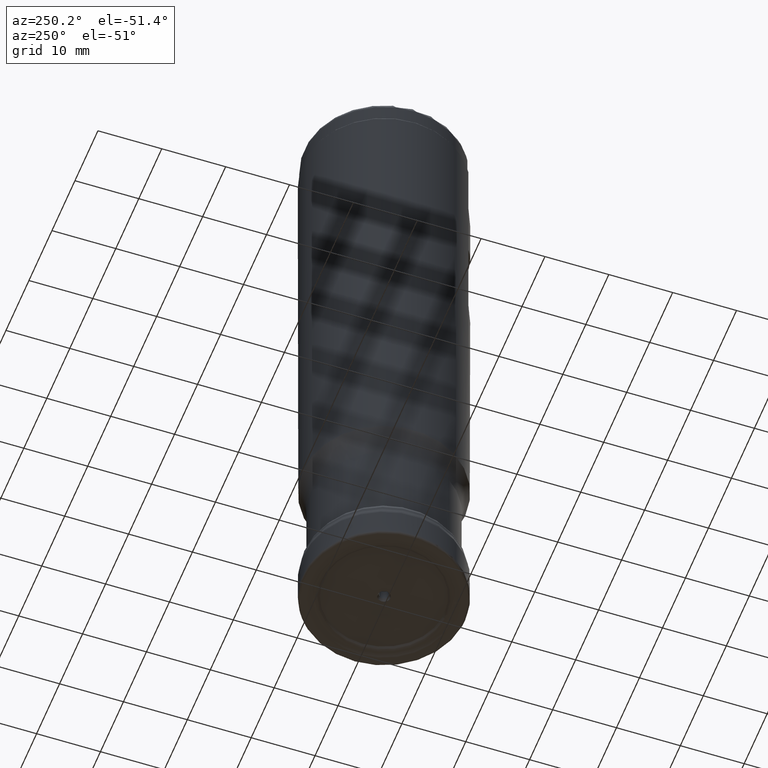
[diagram: clean part render]
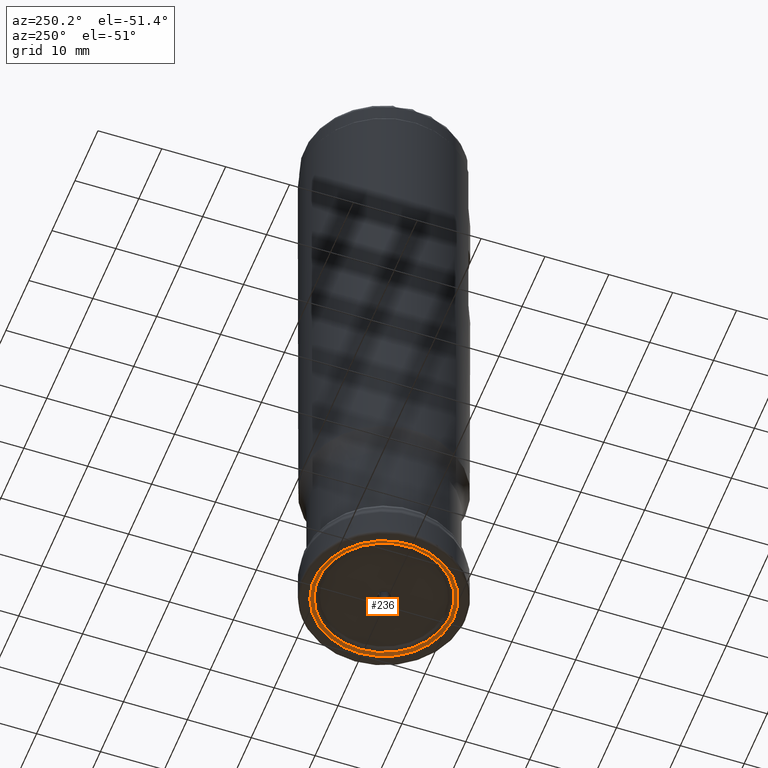
[diagram: same view with one face highlighted and labeled with its STEP entity id]
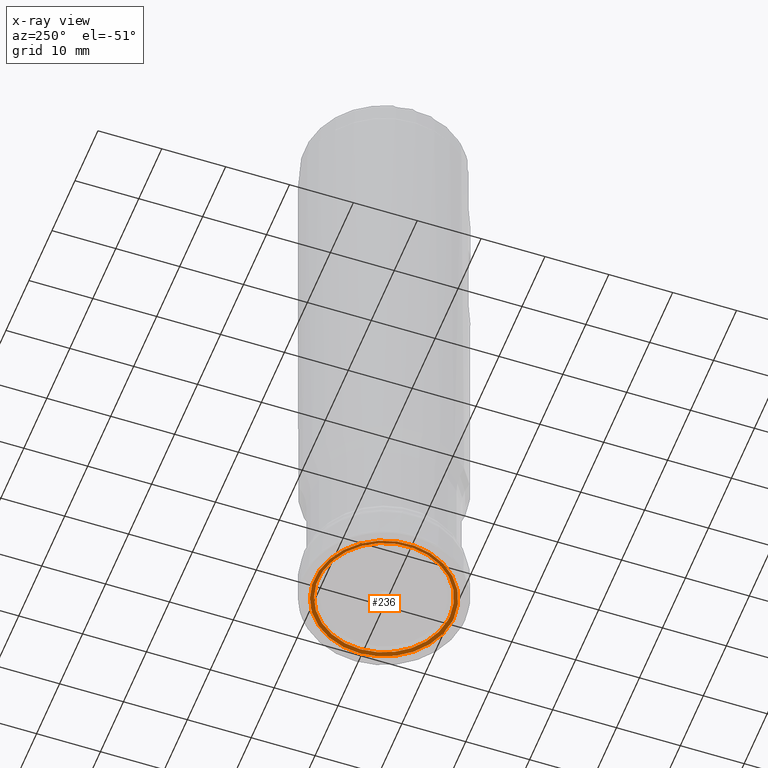
[diagram: x-ray of the same camera — body ghosted, the highlighted face saturated]
A machine part, auxiliary view. The second image highlights one B-rep face of the part: STEP entity #236.
The next image is the same camera in x-ray: the body ghosted, the highlighted face saturated — about 0% of this face is hidden behind the body in this view.
In plain terms, the highlighted face is a SurfaceOfRevolution surface.
Its self-contained STEP definition (entity closure, byte-faithful):
#124=SURFACE_OF_REVOLUTION('',#806,#145);
#145=AXIS1_PLACEMENT('',#1639,#1066);
#236=ADVANCED_FACE('',(#358,#359),#124,.F.);
#358=FACE_BOUND('',#448,.T.);
#359=FACE_BOUND('',#449,.T.);
#448=EDGE_LOOP('',(#584));
#449=EDGE_LOOP('',(#585));
#584=ORIENTED_EDGE('',*,*,#717,.T.);
#585=ORIENTED_EDGE('',*,*,#718,.F.);
#649=VERTEX_POINT('',#1629);
#650=VERTEX_POINT('',#1633);
#717=EDGE_CURVE('',#649,#649,#759,.T.);
#718=EDGE_CURVE('',#650,#650,#760,.T.);
#759=CIRCLE('',#881,10.315038828179);
#760=CIRCLE('',#882,10.9336255384994);
#806=B_SPLINE_CURVE_WITH_KNOTS('',3,(#1634,#1635,#1636,#1637,#1638),
 .UNSPECIFIED.,.F.,.F.,(4,1,4),(0.,0.5,1.),.UNSPECIFIED.);
#881=AXIS2_PLACEMENT_3D('',#1628,#1060,#1061);
#882=AXIS2_PLACEMENT_3D('',#1632,#1064,#1065);
#1060=DIRECTION('',(0.,1.17145536458252E-15,1.));
#1061=DIRECTION('',(0.,-1.,1.17196400562144E-15));
#1064=DIRECTION('',(0.,1.17145536458252E-15,1.));
#1065=DIRECTION('',(0.,-1.,1.17135328234799E-15));
#1066=DIRECTION('',(0.,1.17145536458252E-15,1.));
#1628=CARTESIAN_POINT('',(0.,3.53025699118267E-16,0.301356508998596));
#1629=CARTESIAN_POINT('',(0.,-10.315038828179,0.301356508998608));
#1632=CARTESIAN_POINT('',(0.,1.33337253145748E-16,0.113821881035361));
#1633=CARTESIAN_POINT('',(0.,-10.9336255384994,0.113821881035374));
#1634=CARTESIAN_POINT('',(10.7979653309617,-1.71700673483636,0.113821881035396));
#1635=CARTESIAN_POINT('',(10.7077769215718,-1.67657633404747,0.164405655827857));
#1636=CARTESIAN_POINT('',(10.5161704919063,-1.59479499130958,0.248283452418445));
#1637=CARTESIAN_POINT('',(10.3115016609255,-1.51556925962835,0.291044345822666));
#1638=CARTESIAN_POINT('',(10.2086282175972,-1.47781458299688,0.301356508998598));
#1639=CARTESIAN_POINT('',(0.,0.,0.));